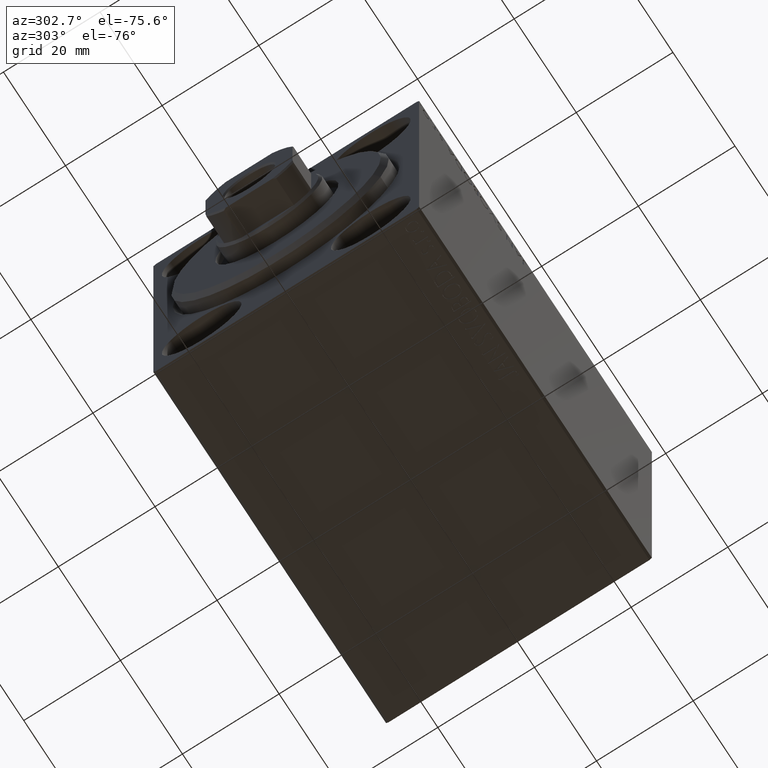
[diagram: clean part render]
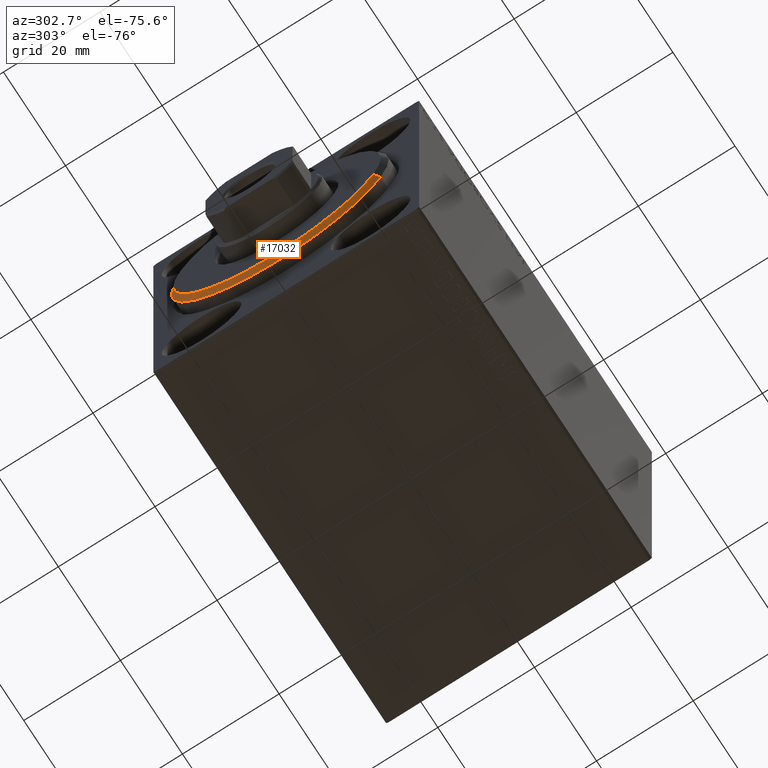
[diagram: same view with one face highlighted and labeled with its STEP entity id]
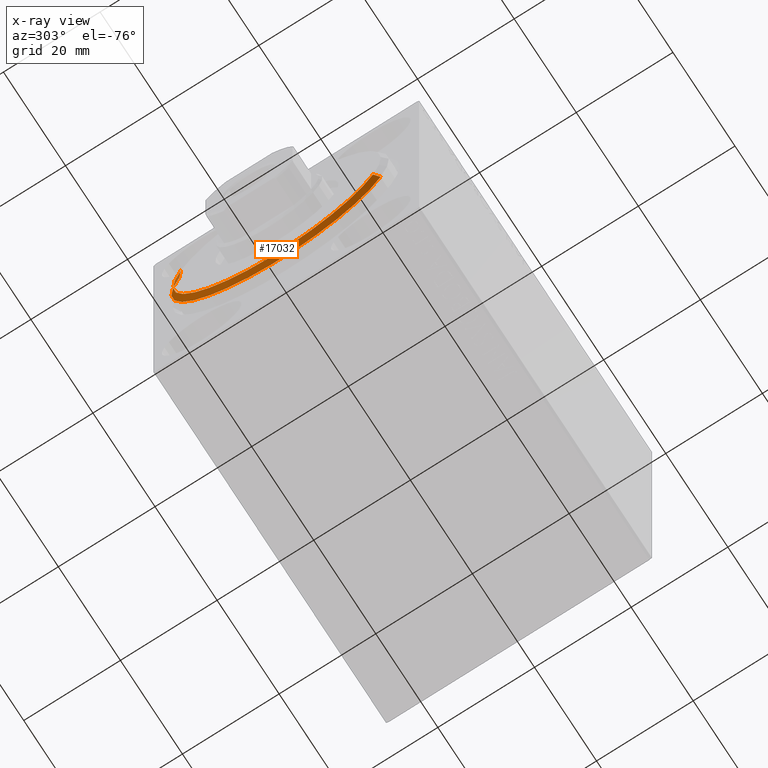
[diagram: x-ray of the same camera — body ghosted, the highlighted face saturated]
A machine part, auxiliary view. The second image highlights one B-rep face of the part: STEP entity #17032.
The next image is the same camera in x-ray: the body ghosted, the highlighted face saturated — about 0% of this face is hidden behind the body in this view.
In plain terms, the highlighted conical surface has half-angle 45 deg.
Its self-contained STEP definition (entity closure, byte-faithful):
#1795 = CARTESIAN_POINT ( 'NONE',  ( 3.000000000000000000, 0.000000000000000000, 21.50000000000000355 ) ) ;
#2233 = CARTESIAN_POINT ( 'NONE',  ( 3.000000000000000000, 0.000000000000000000, 0.000000000000000000 ) ) ;
#2809 = CONICAL_SURFACE ( 'NONE', #4915, 21.50000000000000355, 0.7853981633974466137 ) ;
#3085 = DIRECTION ( 'NONE',  ( 1.000000000000000000, -0.000000000000000000, 0.000000000000000000 ) ) ;
#4579 = VERTEX_POINT ( 'NONE', #1795 ) ;
#4915 = AXIS2_PLACEMENT_3D ( 'NONE', #2233, #42327, #35516 ) ;
#5075 = VECTOR ( 'NONE', #30455, 1000.000000000000000 ) ;
#5847 = EDGE_CURVE ( 'NONE', #28163, #14189, #8240, .T. ) ;
#7222 = CARTESIAN_POINT ( 'NONE',  ( 1.999999999999999112, 2.755455298081545172E-15, -22.50000000000000355 ) ) ;
#7543 = DIRECTION ( 'NONE',  ( 0.000000000000000000, 0.000000000000000000, -1.000000000000000000 ) ) ;
#7973 = CARTESIAN_POINT ( 'NONE',  ( 1.999999999999999112, 0.000000000000000000, 0.000000000000000000 ) ) ;
#8240 = CIRCLE ( 'NONE', #38505, 22.50000000000000355 ) ;
#8844 = FACE_OUTER_BOUND ( 'NONE', #20265, .T. ) ;
#9462 = ORIENTED_EDGE ( 'NONE', *, *, #31112, .F. ) ;
#11429 = VERTEX_POINT ( 'NONE', #37432 ) ;
#14189 = VERTEX_POINT ( 'NONE', #7222 ) ;
#14246 = VECTOR ( 'NONE', #32283, 1000.000000000000000 ) ;
#16209 = ORIENTED_EDGE ( 'NONE', *, *, #27948, .T. ) ;
#17032 = ADVANCED_FACE ( 'NONE', ( #8844 ), #2809, .T. ) ;
#17808 = CARTESIAN_POINT ( 'NONE',  ( 3.000000000000000000, 0.000000000000000000, 21.50000000000000355 ) ) ;
#20265 = EDGE_LOOP ( 'NONE', ( #29772, #16209, #23005, #9462 ) ) ;
#21183 = DIRECTION ( 'NONE',  ( -1.000000000000000000, 0.000000000000000000, 0.000000000000000000 ) ) ;
#23005 = ORIENTED_EDGE ( 'NONE', *, *, #5847, .F. ) ;
#26904 = CIRCLE ( 'NONE', #38154, 21.50000000000000355 ) ;
#27514 = EDGE_CURVE ( 'NONE', #11429, #4579, #26904, .T. ) ;
#27948 = EDGE_CURVE ( 'NONE', #11429, #14189, #32065, .T. ) ;
#28163 = VERTEX_POINT ( 'NONE', #28257 ) ;
#28257 = CARTESIAN_POINT ( 'NONE',  ( 1.999999999999999112, 0.000000000000000000, 22.50000000000000355 ) ) ;
#29772 = ORIENTED_EDGE ( 'NONE', *, *, #27514, .F. ) ;
#30455 = DIRECTION ( 'NONE',  ( -0.7071067811865487940, 0.000000000000000000, 0.7071067811865463515 ) ) ;
#31112 = EDGE_CURVE ( 'NONE', #4579, #28163, #38531, .T. ) ;
#32065 = LINE ( 'NONE', #32497, #14246 ) ;
#32283 = DIRECTION ( 'NONE',  ( -0.7071067811865487940, 8.659560562354919300E-17, -0.7071067811865463515 ) ) ;
#32497 = CARTESIAN_POINT ( 'NONE',  ( 3.000000000000000000, 2.632990618166810024E-15, -21.50000000000000355 ) ) ;
#35516 = DIRECTION ( 'NONE',  ( 0.000000000000000000, 0.000000000000000000, 1.000000000000000000 ) ) ;
#36788 = CARTESIAN_POINT ( 'NONE',  ( 3.000000000000000000, 0.000000000000000000, 0.000000000000000000 ) ) ;
#36999 = DIRECTION ( 'NONE',  ( 0.000000000000000000, 0.000000000000000000, -1.000000000000000000 ) ) ;
#37432 = CARTESIAN_POINT ( 'NONE',  ( 3.000000000000000000, 2.694222958124177598E-15, -21.50000000000000355 ) ) ;
#38154 = AXIS2_PLACEMENT_3D ( 'NONE', #36788, #3085, #36999 ) ;
#38505 = AXIS2_PLACEMENT_3D ( 'NONE', #7973, #21183, #7543 ) ;
#38531 = LINE ( 'NONE', #17808, #5075 ) ;
#42327 = DIRECTION ( 'NONE',  ( -1.000000000000000000, 0.000000000000000000, 0.000000000000000000 ) ) ;